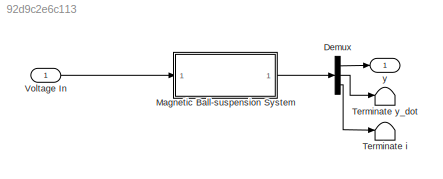
MODEL slx_92d9c2e6c113
KIND model
CONFIG AbsTol = auto
CONFIG EnableMultiTasking = off
CONFIG FixedStep = auto
CONFIG MaxStep = auto
CONFIG MinStep = auto
CONFIG RelTol = 1e-3
CONFIG SampleTimeConstraint = Unconstrained
CONFIG Solver = VariableStepAuto
CONFIG SolverName = VariableStepAuto
CONFIG StartTime = 0.0
CONFIG StopTime = 10.0
BLOCK [Demux] Demux
  DisplayOption = bar
  Outputs = 3
  Ports = [1, 3]
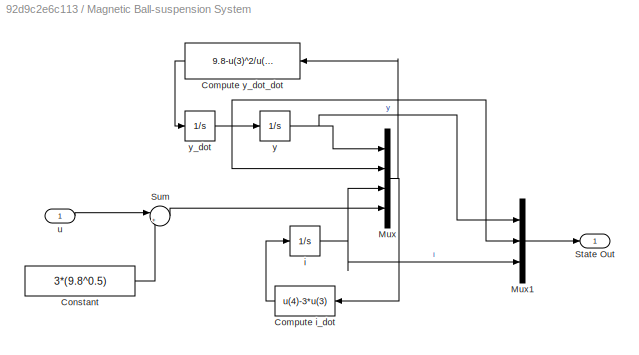
BLOCK [SubSystem] Magnetic Ball-suspension System
  Ports = [1, 1]
  RequestExecContextInheritance = off
BLOCK [Fcn] Magnetic Ball-suspension System/Compute i_dot
  Expr = u(4)-3*u(3)
BLOCK [Fcn] Magnetic Ball-suspension System/Compute y_dot_dot
  Expr = 9.8-u(3)^2/u(1)^2
BLOCK [Constant] Magnetic Ball-suspension System/Constant
  Value = 3*(9.8^0.5)
BLOCK [Mux] Magnetic Ball-suspension System/Mux
  DisplayOption = bar
  Ports = [4, 1]
BLOCK [Mux] Magnetic Ball-suspension System/Mux1
  DisplayOption = bar
  Inputs = 3
  Ports = [3, 1]
BLOCK [Outport] Magnetic Ball-suspension System/State Out
  IconDisplay = Port number
BLOCK [Sum] Magnetic Ball-suspension System/Sum
  IconShape = round
  InputSameDT = off
  Inputs = |+-
  OutDataTypeStr = Inherit: Inherit via internal rule
  Ports = [2, 1]
  SaturateOnIntegerOverflow = off
BLOCK [Integrator] Magnetic Ball-suspension System/i
  InitialCondition = sqrt(9.8)
  Ports = [1, 1]
BLOCK [Inport] Magnetic Ball-suspension System/u
  IconDisplay = Port number
BLOCK [Integrator] Magnetic Ball-suspension System/y
  InitialCondition = 1
  Ports = [1, 1]
BLOCK [Integrator] Magnetic Ball-suspension System/y_dot
  Ports = [1, 1]
BLOCK [Terminator] Terminate i
BLOCK [Terminator] Terminate y_dot
BLOCK [Inport] Voltage In
  IconDisplay = Port number
BLOCK [Outport] y
  IconDisplay = Port number
LINE Demux:1 -> y:1
LINE Demux:2 -> Terminate y_dot:1
LINE Demux:3 -> Terminate i:1
LINE Magnetic Ball-suspension System/Compute i_dot:1 -> Magnetic Ball-suspension System/i:1
LINE Magnetic Ball-suspension System/Compute y_dot_dot:1 -> Magnetic Ball-suspension System/y_dot:1
LINE Magnetic Ball-suspension System/Constant:1 -> Magnetic Ball-suspension System/Sum:2
LINE Magnetic Ball-suspension System/Mux1:1 -> Magnetic Ball-suspension System/State Out:1
NET Magnetic Ball-suspension System/Mux:1 -> Magnetic Ball-suspension System/Compute i_dot:1, Magnetic Ball-suspension System/Compute y_dot_dot:1
LINE Magnetic Ball-suspension System/Sum:1 -> Magnetic Ball-suspension System/Mux:4
NET Magnetic Ball-suspension System/i:1 -> Magnetic Ball-suspension System/Mux1:3, Magnetic Ball-suspension System/Mux:3
LINE Magnetic Ball-suspension System/u:1 -> Magnetic Ball-suspension System/Sum:1
NET Magnetic Ball-suspension System/y:1 -> Magnetic Ball-suspension System/Mux1:1, Magnetic Ball-suspension System/Mux:1
NET Magnetic Ball-suspension System/y_dot:1 -> Magnetic Ball-suspension System/Mux1:2, Magnetic Ball-suspension System/Mux:2, Magnetic Ball-suspension System/y:1
LINE Magnetic Ball-suspension System:1 -> Demux:1
LINE Voltage In:1 -> Magnetic Ball-suspension System:1
note: NET lines group one-source signal fan-out (src -> all destinations, sorted); 1:1 wires keep LINE
